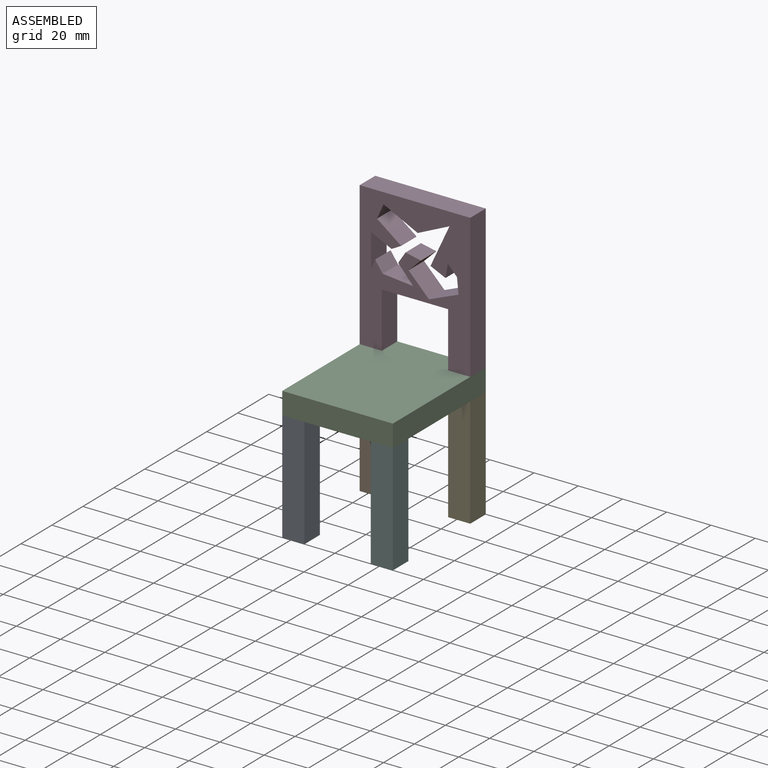
[diagram: assembled view]
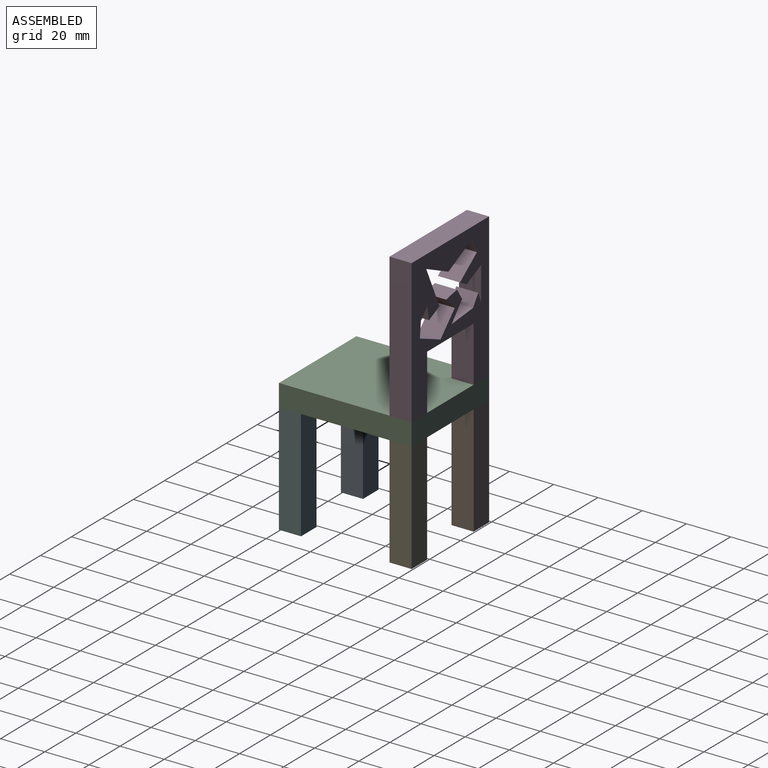
[diagram: assembled view, second angle]
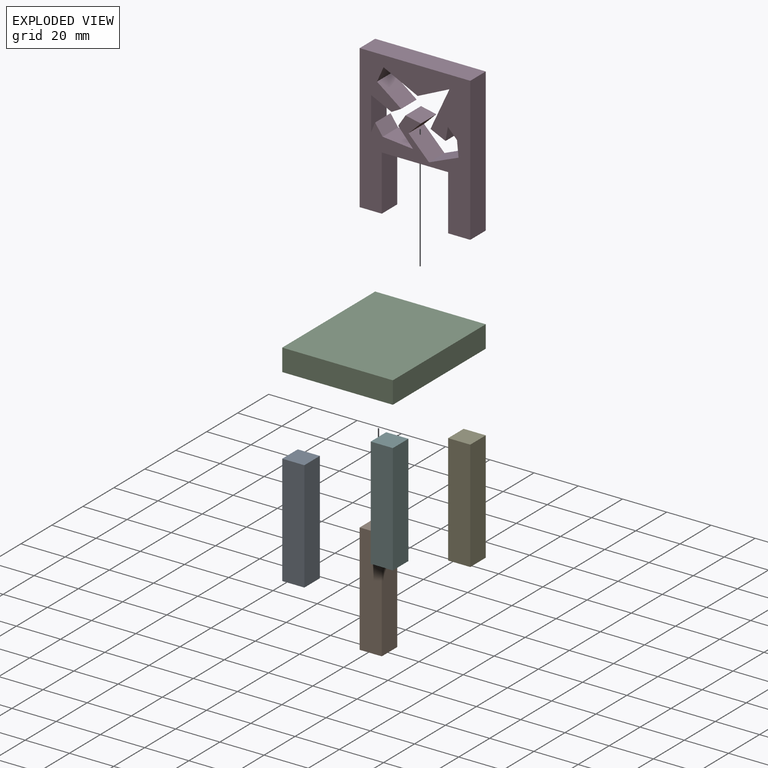
[diagram: exploded view]
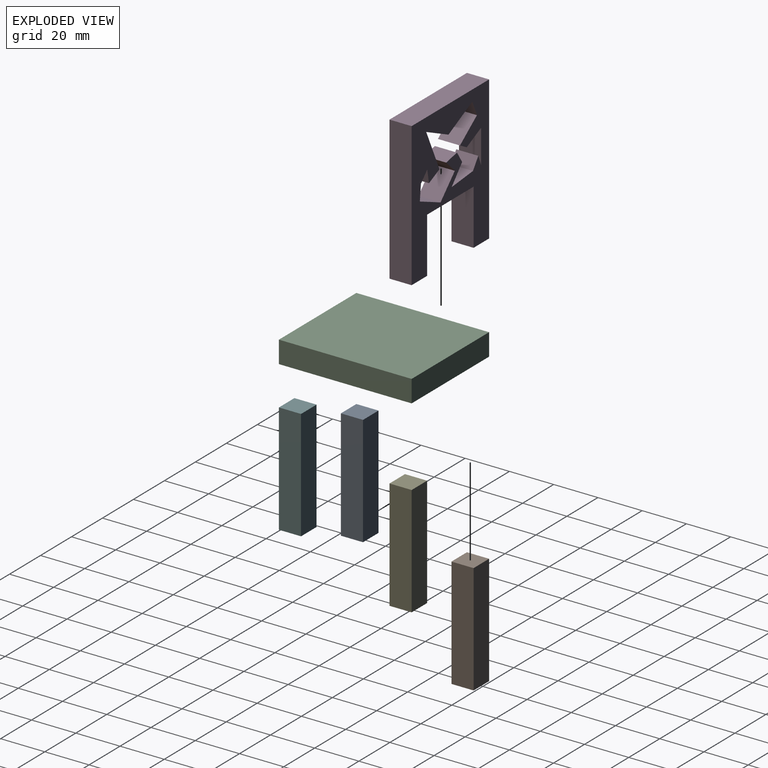
[diagram: exploded view, second angle]
ASSEMBLY  parts=6 mates=5
PART A: 6 faces, bbox 10x10x50 mm
  f0: plane 50x10mm, normal (-1,0,0), area 500mm2, adj f1,f3,f4,f5
  f1: plane 50x10mm, normal (0,-1,0), area 500mm2, adj f0,f2,f4,f5
  f2: plane 50x10mm, normal (1,0,0), area 500mm2, adj f1,f3,f4,f5
  f3: plane 50x10mm, normal (0,1,0), area 500mm2, adj f0,f2,f4,f5
  f4: plane 10x10mm, normal (0,0,1), area 100mm2, adj f0,f1,f2,f3
  f5: plane 10x10mm, normal (0,0,-1), area 100mm2, adj f0,f1,f2,f3
PART B: same geometry as A
PART C: 6 faces, bbox 50x60x10 mm
  f0: plane 60x10mm, normal (-1,0,0), area 600mm2, adj f1,f3,f4,f5
  f1: plane 50x10mm, normal (0,-1,0), area 500mm2, adj f0,f2,f4,f5
  f2: plane 60x10mm, normal (1,0,0), area 600mm2, adj f1,f3,f4,f5
  f3: plane 50x10mm, normal (0,1,0), area 500mm2, adj f0,f2,f4,f5
  f4: plane 60x50mm, normal (0,0,1), area 3000mm2, adj f0,f1,f2,f3
  f5: plane 60x50mm, normal (0,0,-1), area 3000mm2, adj f0,f1,f2,f3
PART D: 33 faces, bbox 50x10x65 mm
  f0: plane 65x50mm, normal (0,-1,0), area 1786.7mm2, adj f2,f3,f4,f5,f6,f7,f8,f9
  f1: plane 65x50mm, normal (0,1,0), area 1786.7mm2, adj f2,f3,f4,f5,f6,f7,f8,f9
  f2: plane 25x10mm, normal (1,0,0), area 250mm2, adj f0,f1,f3,f9
  f3: plane 30x10mm, normal (0,0,-1), area 300mm2, adj f0,f1,f2,f4
  f4: plane 25x10mm, normal (-1,0,0), area 250mm2, adj f0,f1,f3,f5
  f5: plane 10x10mm, normal (0,0,-1), area 100mm2, adj f0,f1,f4,f6
  f6: plane 65x10mm, normal (1,0,0), area 650mm2, adj f0,f1,f5,f7
  f7: plane 50x10mm, normal (0,0,1), area 500mm2, adj f0,f1,f6,f8
  f8: plane 65x10mm, normal (-1,0,0), area 650mm2, adj f0,f1,f7,f9
  f9: plane 10x10mm, normal (0,0,-1), area 100mm2, adj f0,f1,f2,f8
  f10: plane 15.4x10mm, normal (-0.44,0,-0.9), area 171.8mm2, adj f0,f1,f11,f32
  f11: plane 10x6.67mm, normal (0.91,0,-0.41), area 73.1mm2, adj f0,f1,f10,f12
  f12: plane 10x5.05mm, normal (0.6,0,0.8), area 63mm2, adj f0,f1,f11,f13
  f13: plane 10x5.9mm, normal (0.6,0,0.8), area 73.9mm2, adj f0,f1,f12,f14
  f14: plane 10x4.36mm, normal (0.48,0,-0.88), area 49.8mm2, adj f0,f1,f13,f15
  f15: plane 10x9.24mm, normal (-0.43,0,-0.9), area 102.6mm2, adj f0,f1,f14,f16
  f16: plane 15.23x10mm, normal (1,0,0), area 152.3mm2, adj f0,f1,f15,f17
  f17: plane 10x4.45mm, normal (-0.93,0,0.37), area 48mm2, adj f0,f1,f16,f18
  f18: plane 10x4.88mm, normal (0.82,0,0.57), area 59.6mm2, adj f0,f1,f17,f19
  f19: plane 13.78x10mm, normal (0.1,0,1), area 138.4mm2, adj f0,f1,f18,f20
  f20: plane 10x7.7mm, normal (-0.75,0,-0.66), area 102.5mm2, adj f0,f1,f19,f21
  f21: plane 10x5.13mm, normal (-0.84,0,0.54), area 61.2mm2, adj f0,f1,f20,f22
  f22: plane 10x6.93mm, normal (0.21,0,0.98), area 70.9mm2, adj f0,f1,f21,f23
  f23: plane 10x5.57mm, normal (0.7,0,-0.71), area 78mm2, adj f0,f1,f22,f24
  f24: plane 10x9.41mm, normal (0.71,0,0.7), area 131.9mm2, adj f0,f1,f23,f25
  f25: plane 10x6.59mm, normal (-0.38,0,0.92), area 71.3mm2, adj f0,f1,f24,f26
  f26: plane 10x6.76mm, normal (-0.38,0,0.93), area 72.9mm2, adj f0,f1,f25,f27
  f27: plane 10x7.02mm, normal (-1,0,-0.1), area 70.5mm2, adj f0,f1,f26,f28
  f28: plane 10x4.28mm, normal (-0.72,0,-0.69), area 59.3mm2, adj f0,f1,f27,f29
  f29: plane 10x6.04mm, normal (0.98,0,-0.18), area 61.4mm2, adj f0,f1,f28,f30
  f30: plane 10x6.77mm, normal (-0.42,0,-0.91), area 74.6mm2, adj f0,f1,f29,f31
  f31: plane 18.48x10mm, normal (-0.91,0,0.42), area 203.7mm2, adj f0,f1,f30,f32
  f32: plane 14.37x10mm, normal (0.42,0,-0.91), area 158.1mm2, adj f0,f1,f10,f31
PART E: same geometry as A
PART F: same geometry as A
PLACE A t=(-81.19,-57.99,-48.32)mm
PLACE B t=(-81.19,-7.99,-48.32)mm
PLACE C t=(-81.19,-57.99,1.68)mm fixed
PLACE D t=(-81.19,2.01,11.68)mm
PLACE E t=(-41.19,-7.99,-48.32)mm
PLACE F t=(-41.19,-57.99,-48.32)mm
MATE fastened C.f5 <-> B.f4  axis (0,0,-1) through (-81.19,2.01,1.68)mm
MATE fastened A.f4 <-> C.f5  axis (0,0,1) through (-81.19,-57.99,1.68)mm
MATE fastened C.f5 <-> F.f4  axis (0,0,-1) through (-31.19,-57.99,1.68)mm
MATE fastened C.f5 <-> E.f4  axis (0,0,-1) through (-31.19,2.01,1.68)mm
MATE fastened C.f4 <-> D.f9  axis (0,0,1) through (-81.19,2.01,11.68)mm
